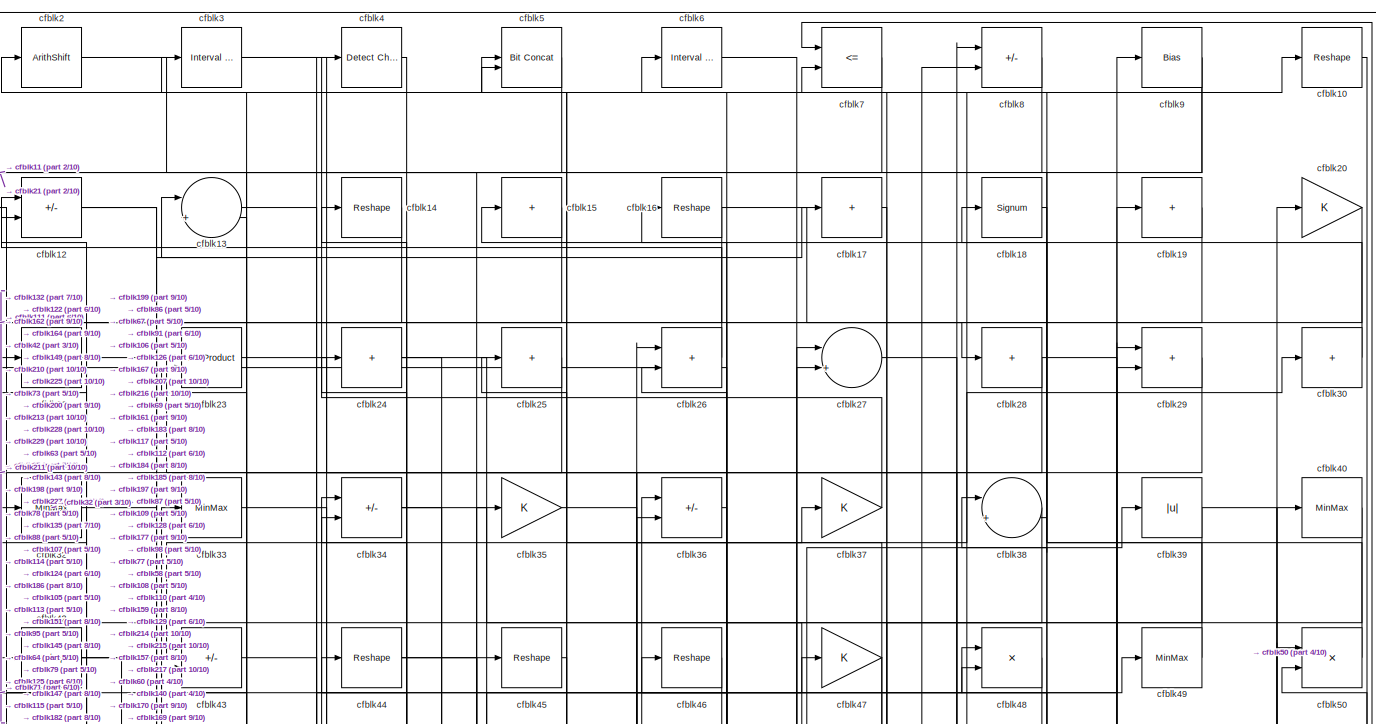
[diagram: root canvas - part 1/10, full width, top band]
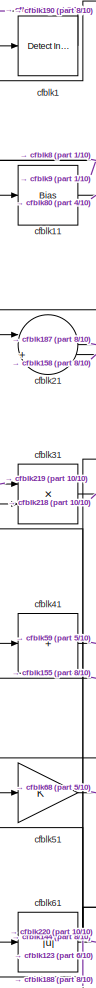
[diagram: root canvas - part 2/10, top left region]
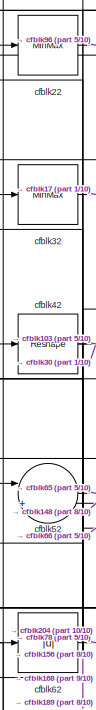
[diagram: root canvas - part 3/10, top left region]
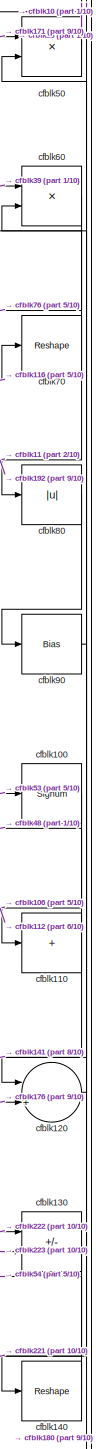
[diagram: root canvas - part 4/10, middle right region]
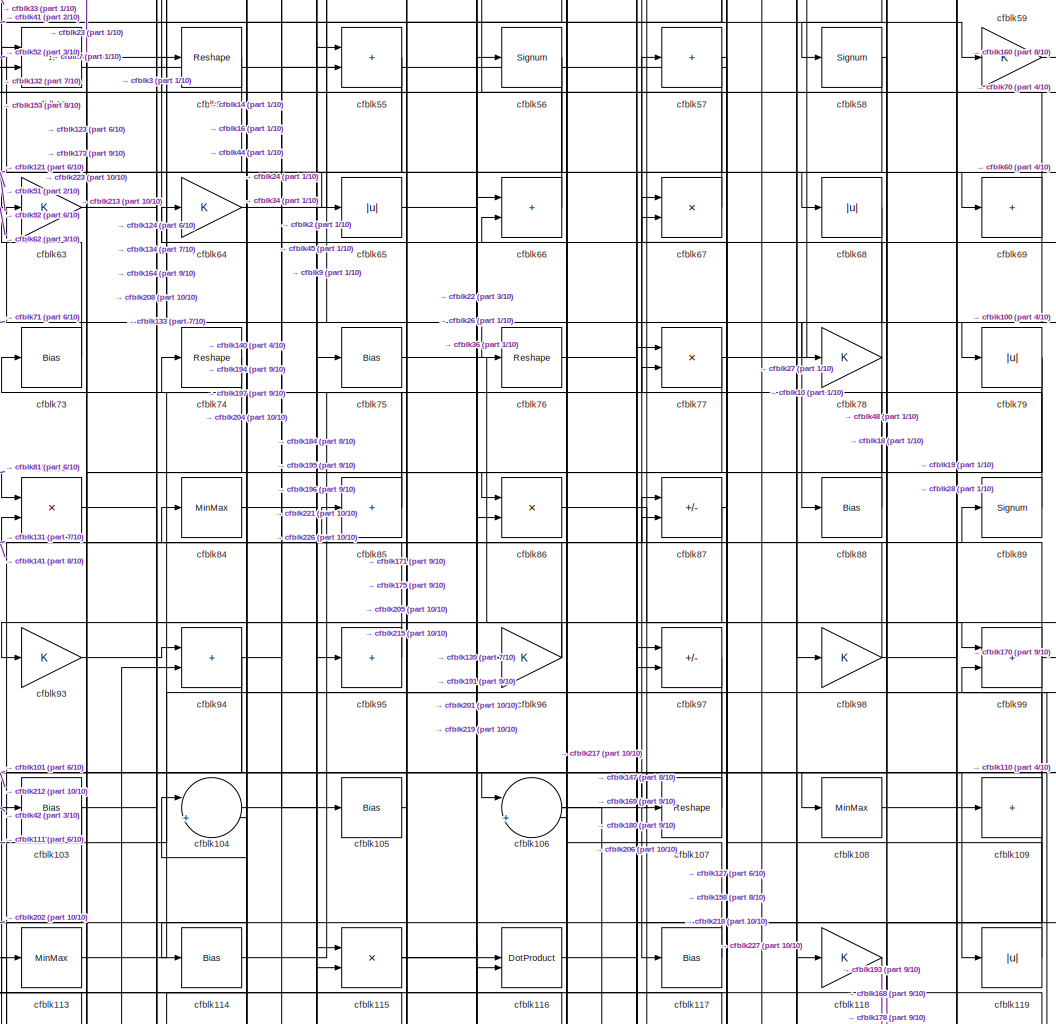
[diagram: root canvas - part 5/10, central region]
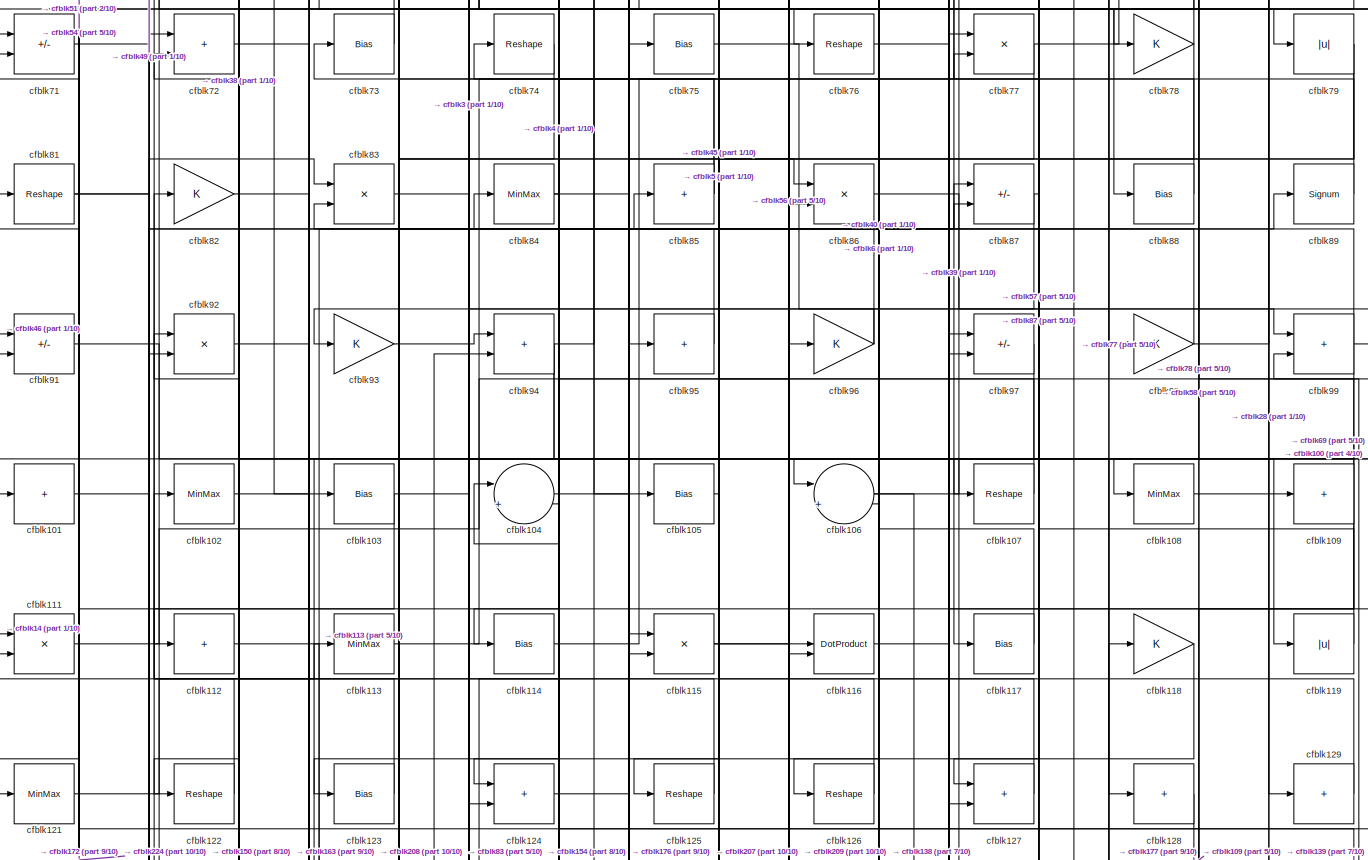
[diagram: root canvas - part 6/10, full width, middle band]
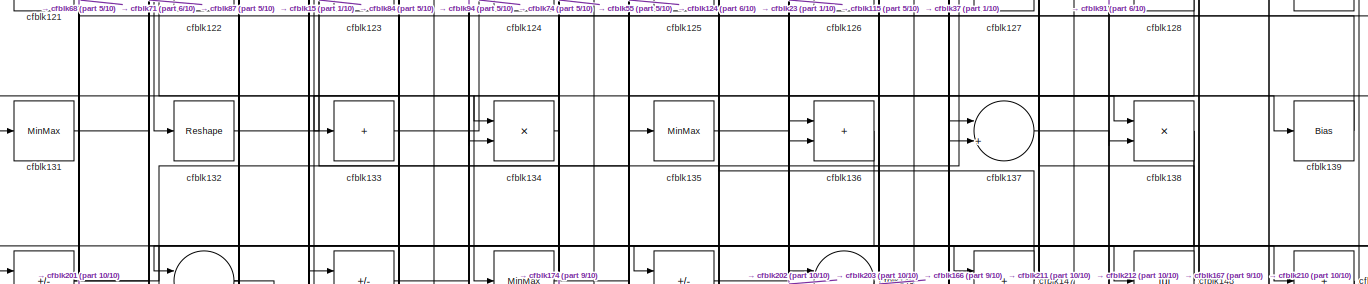
[diagram: root canvas - part 7/10, full width, middle band]
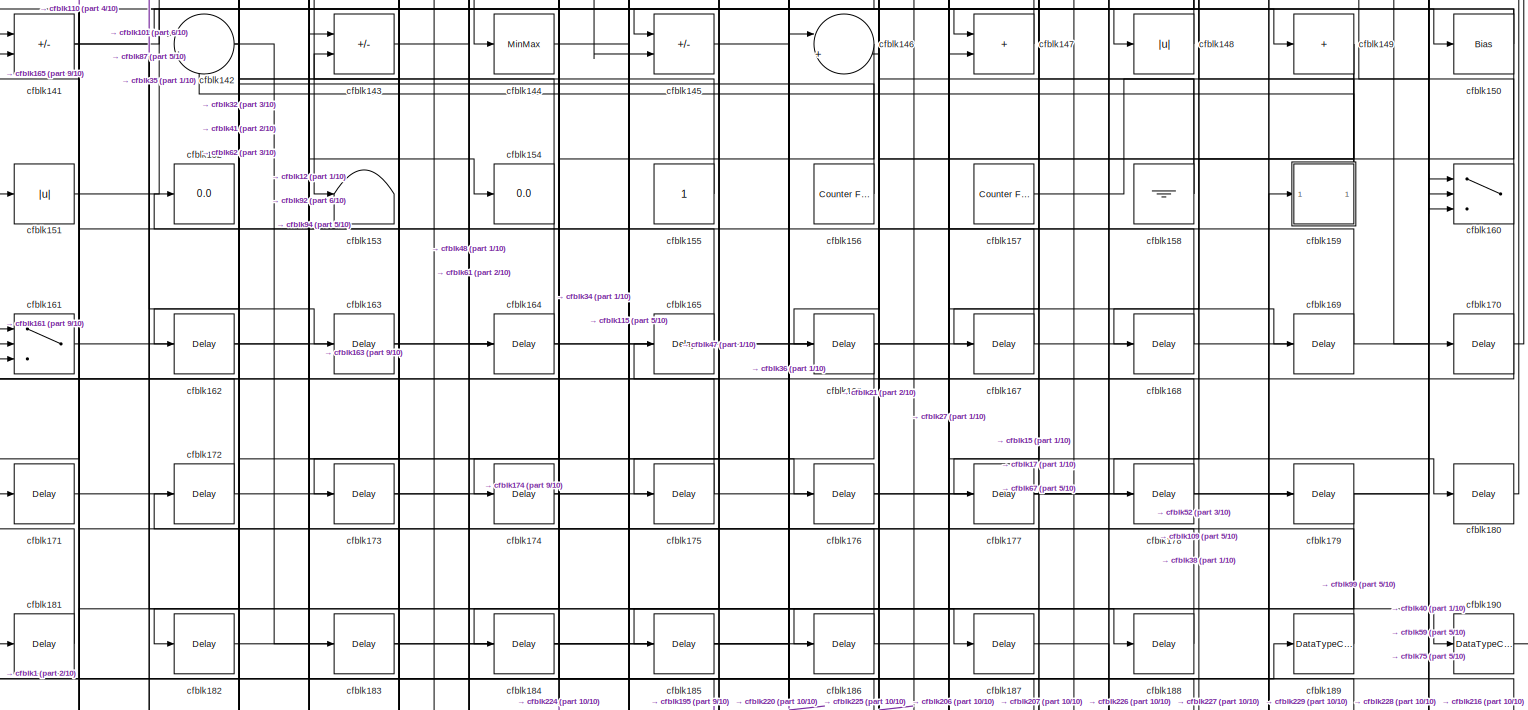
[diagram: root canvas - part 8/10, full width, bottom band]
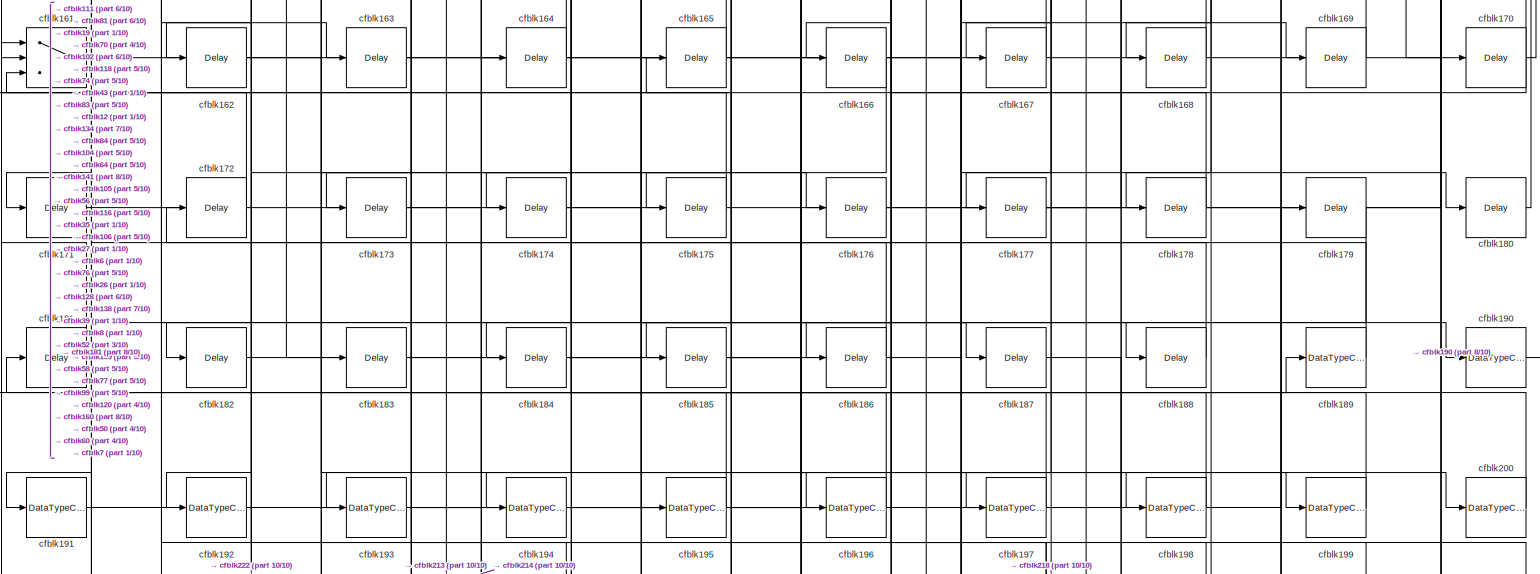
[diagram: root canvas - part 9/10, full width, bottom band]
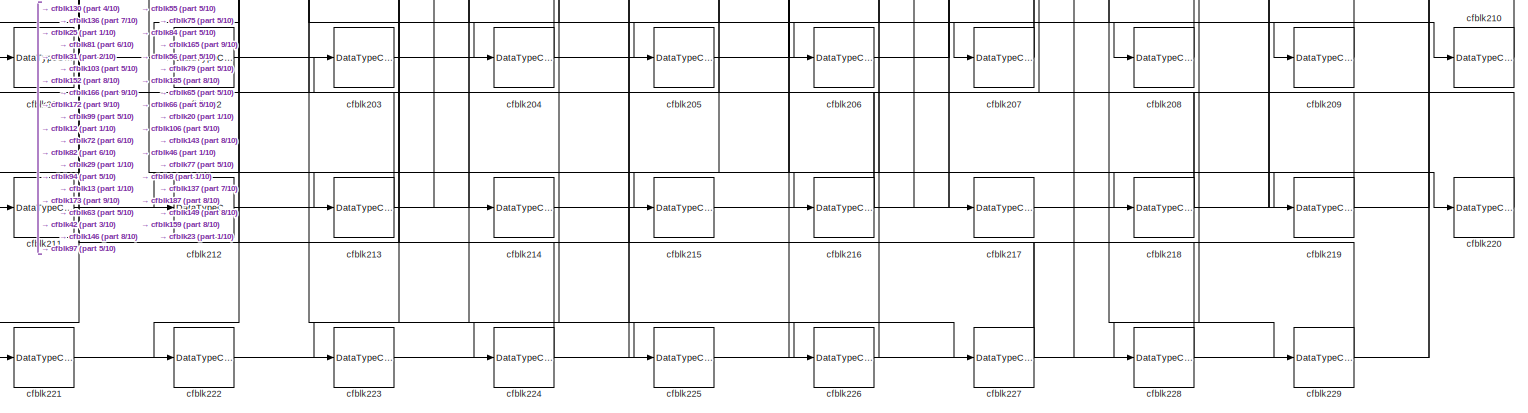
[diagram: root canvas - part 10/10, full width, bottom band]
MODEL slx_e704a06ff0ff
KIND model
CONFIG AbsTol = auto
CONFIG EnableMultiTasking = off
CONFIG FixedStep = auto
CONFIG MaxStep = auto
CONFIG MinStep = auto
CONFIG RelTol = 1e-3
CONFIG SampleTimeConstraint = Unconstrained
CONFIG SolverName = VariableStepAuto
CONFIG StartTime = 0.0
CONFIG StopTime = 10.0
BLOCK [Reference] cfblk1  REF=simulink/Logic and Bit
Operations/Detect
Increase
  LibrarySourceBlock = hdlsllib/Logic and Bit\nOperations/Detect\nIncrease
  SourceBlock = simulink/Logic and Bit\nOperations/Detect\nIncrease
  SourceType = Detect Increase
BLOCK [Reshape] cfblk10
BLOCK [Signum] cfblk100
BLOCK [Sum] cfblk101
  IconShape = rectangular
  Inputs = +
BLOCK [MinMax] cfblk102
BLOCK [Bias] cfblk103
  Bias = 0.0
  SaturateOnIntegerOverflow = off
BLOCK [Sum] cfblk104
  Inputs = |++
BLOCK [Bias] cfblk105
  Bias = 0.0
  SaturateOnIntegerOverflow = off
BLOCK [Sum] cfblk106
  Inputs = |++
BLOCK [Reshape] cfblk107
BLOCK [MinMax] cfblk108
BLOCK [Sum] cfblk109
  IconShape = rectangular
  Inputs = +
BLOCK [Bias] cfblk11
  Bias = 0.0
  SaturateOnIntegerOverflow = off
BLOCK [Sum] cfblk110
  IconShape = rectangular
  Inputs = +
BLOCK [Product] cfblk111
  Inputs = */
  RndMeth = Zero
  SaturateOnIntegerOverflow = on
BLOCK [Sum] cfblk112
  IconShape = rectangular
  Inputs = +
BLOCK [MinMax] cfblk113
BLOCK [Bias] cfblk114
  Bias = 0.0
  SaturateOnIntegerOverflow = off
BLOCK [Product] cfblk115
  Inputs = */
  RndMeth = Zero
  SaturateOnIntegerOverflow = on
BLOCK [DotProduct] cfblk116
  OutDataTypeStr = Inherit: Inherit via internal rule
BLOCK [Bias] cfblk117
  Bias = 0.0
  SaturateOnIntegerOverflow = off
BLOCK [Gain] cfblk118
BLOCK [Abs] cfblk119
  SaturateOnIntegerOverflow = off
BLOCK [Sum] cfblk12
  IconShape = rectangular
  Inputs = +-
BLOCK [Sum] cfblk120
  Inputs = |++
BLOCK [MinMax] cfblk121
BLOCK [Reshape] cfblk122
BLOCK [Bias] cfblk123
  Bias = 0.0
  SaturateOnIntegerOverflow = off
BLOCK [Sum] cfblk124
  IconShape = rectangular
BLOCK [Reshape] cfblk125
BLOCK [Reshape] cfblk126
BLOCK [Sum] cfblk127
  IconShape = rectangular
BLOCK [Sum] cfblk128
  IconShape = rectangular
  Inputs = +
BLOCK [Sum] cfblk129
  IconShape = rectangular
  Inputs = +
BLOCK [Sum] cfblk13
  Inputs = |++
BLOCK [Sum] cfblk130
  IconShape = rectangular
  Inputs = +-
BLOCK [MinMax] cfblk131
BLOCK [Reshape] cfblk132
BLOCK [Sum] cfblk133
  IconShape = rectangular
  Inputs = +
BLOCK [Product] cfblk134
  Inputs = */
  RndMeth = Zero
  SaturateOnIntegerOverflow = on
BLOCK [MinMax] cfblk135
BLOCK [Sum] cfblk136
  IconShape = rectangular
BLOCK [Sum] cfblk137
  Inputs = |++
BLOCK [Product] cfblk138
  Inputs = */
  RndMeth = Zero
  SaturateOnIntegerOverflow = on
BLOCK [Bias] cfblk139
  Bias = 0.0
  SaturateOnIntegerOverflow = off
BLOCK [Reshape] cfblk14
BLOCK [Reshape] cfblk140
BLOCK [Sum] cfblk141
  IconShape = rectangular
  Inputs = +-
BLOCK [Sum] cfblk142
  Inputs = |++
BLOCK [Sum] cfblk143
  IconShape = rectangular
  Inputs = +-
BLOCK [MinMax] cfblk144
BLOCK [Sum] cfblk145
  IconShape = rectangular
  Inputs = +-
BLOCK [Sum] cfblk146
  Inputs = |++
BLOCK [Sum] cfblk147
  IconShape = rectangular
BLOCK [Abs] cfblk148
  SaturateOnIntegerOverflow = off
BLOCK [Sum] cfblk149
  IconShape = rectangular
  Inputs = +
BLOCK [Sum] cfblk15
  IconShape = rectangular
  Inputs = +
BLOCK [Bias] cfblk150
  Bias = 0.0
  SaturateOnIntegerOverflow = off
BLOCK [Abs] cfblk151
  SaturateOnIntegerOverflow = off
BLOCK [Display] cfblk152
  Decimation = 1
BLOCK [Terminator] cfblk153
BLOCK [Display] cfblk154
  Decimation = 1
BLOCK [Constant] cfblk155
  SampleTime = -1
BLOCK [Reference] cfblk156  REF=hdlsllib/Sources/Counter
Free-Running
  SourceBlock = hdlsllib/Sources/Counter\nFree-Running
  SourceType = Counter Free-Running
BLOCK [Reference] cfblk157  REF=hdlsllib/Sources/Counter
Free-Running
  SourceBlock = hdlsllib/Sources/Counter\nFree-Running
  SourceType = Counter Free-Running
BLOCK [Ground] cfblk158
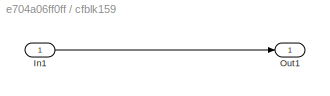
BLOCK [SubSystem] cfblk159
  LibrarySourceBlock = hdlsllib/Ports &\nSubsystems/Subsystem
BLOCK [Inport] cfblk159/In1
BLOCK [Outport] cfblk159/Out1
BLOCK [Reshape] cfblk16
BLOCK [Switch] cfblk160
  InputSameDT = off
  SaturateOnIntegerOverflow = off
BLOCK [Switch] cfblk161
  InputSameDT = off
  SaturateOnIntegerOverflow = off
BLOCK [Delay] cfblk162
  InputPortMap = u0
  SampleTime = 1
BLOCK [Delay] cfblk163
  InputPortMap = u0
  SampleTime = 1
BLOCK [Delay] cfblk164
  InputPortMap = u0
  SampleTime = 1
BLOCK [Delay] cfblk165
  InputPortMap = u0
  SampleTime = 1
BLOCK [Delay] cfblk166
  InputPortMap = u0
  SampleTime = 1
BLOCK [Delay] cfblk167
  InputPortMap = u0
  SampleTime = 1
BLOCK [Delay] cfblk168
  InputPortMap = u0
  SampleTime = 1
BLOCK [Delay] cfblk169
  InputPortMap = u0
  SampleTime = 1
BLOCK [Sum] cfblk17
  IconShape = rectangular
  Inputs = +
BLOCK [Delay] cfblk170
  InputPortMap = u0
  SampleTime = 1
BLOCK [Delay] cfblk171
  InputPortMap = u0
  SampleTime = 1
BLOCK [Delay] cfblk172
  InputPortMap = u0
  SampleTime = 1
BLOCK [Delay] cfblk173
  InputPortMap = u0
  SampleTime = 1
BLOCK [Delay] cfblk174
  InputPortMap = u0
  SampleTime = 1
BLOCK [Delay] cfblk175
  InputPortMap = u0
  SampleTime = 1
BLOCK [Delay] cfblk176
  InputPortMap = u0
  SampleTime = 1
BLOCK [Delay] cfblk177
  InputPortMap = u0
  SampleTime = 1
BLOCK [Delay] cfblk178
  InputPortMap = u0
  SampleTime = 1
BLOCK [Delay] cfblk179
  InputPortMap = u0
  SampleTime = 1
BLOCK [Signum] cfblk18
BLOCK [Delay] cfblk180
  InputPortMap = u0
  SampleTime = 1
BLOCK [Delay] cfblk181
  InputPortMap = u0
  SampleTime = 1
BLOCK [Delay] cfblk182
  InputPortMap = u0
  SampleTime = 1
BLOCK [Delay] cfblk183
  InputPortMap = u0
  SampleTime = 1
BLOCK [Delay] cfblk184
  InputPortMap = u0
  SampleTime = 1
BLOCK [Delay] cfblk185
  InputPortMap = u0
  SampleTime = 1
BLOCK [Delay] cfblk186
  InputPortMap = u0
  SampleTime = 1
BLOCK [Delay] cfblk187
  InputPortMap = u0
  SampleTime = 1
BLOCK [Delay] cfblk188
  InputPortMap = u0
  SampleTime = 1
BLOCK [DataTypeConversion] cfblk189
  OutDataTypeStr = uint8
  RndMeth = Floor
  SaturateOnIntegerOverflow = off
BLOCK [Sum] cfblk19
  IconShape = rectangular
  Inputs = +
BLOCK [DataTypeConversion] cfblk190
  OutDataTypeStr = uint8
  RndMeth = Floor
  SaturateOnIntegerOverflow = off
BLOCK [DataTypeConversion] cfblk191
  OutDataTypeStr = uint8
  RndMeth = Floor
  SaturateOnIntegerOverflow = off
BLOCK [DataTypeConversion] cfblk192
  OutDataTypeStr = uint8
  RndMeth = Floor
  SaturateOnIntegerOverflow = off
BLOCK [DataTypeConversion] cfblk193
  OutDataTypeStr = uint8
  RndMeth = Floor
  SaturateOnIntegerOverflow = off
BLOCK [DataTypeConversion] cfblk194
  OutDataTypeStr = uint8
  RndMeth = Floor
  SaturateOnIntegerOverflow = off
BLOCK [DataTypeConversion] cfblk195
  OutDataTypeStr = uint8
  RndMeth = Floor
  SaturateOnIntegerOverflow = off
BLOCK [DataTypeConversion] cfblk196
  OutDataTypeStr = uint8
  RndMeth = Floor
  SaturateOnIntegerOverflow = off
BLOCK [DataTypeConversion] cfblk197
  OutDataTypeStr = uint8
  RndMeth = Floor
  SaturateOnIntegerOverflow = off
BLOCK [DataTypeConversion] cfblk198
  OutDataTypeStr = uint8
  RndMeth = Floor
  SaturateOnIntegerOverflow = off
BLOCK [DataTypeConversion] cfblk199
  OutDataTypeStr = uint8
  RndMeth = Floor
  SaturateOnIntegerOverflow = off
BLOCK [ArithShift] cfblk2
  BitShiftNumber = 8
  InputPortMap = u0
BLOCK [Gain] cfblk20
BLOCK [DataTypeConversion] cfblk200
  OutDataTypeStr = uint8
  RndMeth = Floor
  SaturateOnIntegerOverflow = off
BLOCK [DataTypeConversion] cfblk201
  OutDataTypeStr = uint8
  RndMeth = Floor
  SaturateOnIntegerOverflow = off
BLOCK [DataTypeConversion] cfblk202
  OutDataTypeStr = uint8
  RndMeth = Floor
  SaturateOnIntegerOverflow = off
BLOCK [DataTypeConversion] cfblk203
  OutDataTypeStr = uint8
  RndMeth = Floor
  SaturateOnIntegerOverflow = off
BLOCK [DataTypeConversion] cfblk204
  OutDataTypeStr = uint8
  RndMeth = Floor
  SaturateOnIntegerOverflow = off
BLOCK [DataTypeConversion] cfblk205
  OutDataTypeStr = uint8
  RndMeth = Floor
  SaturateOnIntegerOverflow = off
BLOCK [DataTypeConversion] cfblk206
  OutDataTypeStr = uint8
  RndMeth = Floor
  SaturateOnIntegerOverflow = off
BLOCK [DataTypeConversion] cfblk207
  RndMeth = Floor
  SaturateOnIntegerOverflow = off
BLOCK [DataTypeConversion] cfblk208
  OutDataTypeStr = uint8
  RndMeth = Floor
  SaturateOnIntegerOverflow = off
BLOCK [DataTypeConversion] cfblk209
  OutDataTypeStr = uint8
  RndMeth = Floor
  SaturateOnIntegerOverflow = off
BLOCK [Sum] cfblk21
  Inputs = |++
BLOCK [DataTypeConversion] cfblk210
  OutDataTypeStr = uint8
  RndMeth = Floor
  SaturateOnIntegerOverflow = off
BLOCK [DataTypeConversion] cfblk211
  OutDataTypeStr = uint8
  RndMeth = Floor
  SaturateOnIntegerOverflow = off
BLOCK [DataTypeConversion] cfblk212
  OutDataTypeStr = uint8
  RndMeth = Floor
  SaturateOnIntegerOverflow = off
BLOCK [DataTypeConversion] cfblk213
  RndMeth = Floor
  SaturateOnIntegerOverflow = off
BLOCK [DataTypeConversion] cfblk214
  OutDataTypeStr = uint8
  RndMeth = Floor
  SaturateOnIntegerOverflow = off
BLOCK [DataTypeConversion] cfblk215
  OutDataTypeStr = uint8
  RndMeth = Floor
  SaturateOnIntegerOverflow = off
BLOCK [DataTypeConversion] cfblk216
  RndMeth = Floor
  SaturateOnIntegerOverflow = off
BLOCK [DataTypeConversion] cfblk217
  OutDataTypeStr = uint8
  RndMeth = Floor
  SaturateOnIntegerOverflow = off
BLOCK [DataTypeConversion] cfblk218
  RndMeth = Floor
  SaturateOnIntegerOverflow = off
BLOCK [DataTypeConversion] cfblk219
  OutDataTypeStr = uint8
  RndMeth = Floor
  SaturateOnIntegerOverflow = off
BLOCK [MinMax] cfblk22
BLOCK [DataTypeConversion] cfblk220
  OutDataTypeStr = uint8
  RndMeth = Floor
  SaturateOnIntegerOverflow = off
BLOCK [DataTypeConversion] cfblk221
  OutDataTypeStr = uint8
  RndMeth = Floor
  SaturateOnIntegerOverflow = off
BLOCK [DataTypeConversion] cfblk222
  OutDataTypeStr = uint8
  RndMeth = Floor
  SaturateOnIntegerOverflow = off
BLOCK [DataTypeConversion] cfblk223
  OutDataTypeStr = uint8
  RndMeth = Floor
  SaturateOnIntegerOverflow = off
BLOCK [DataTypeConversion] cfblk224
  OutDataTypeStr = uint8
  RndMeth = Floor
  SaturateOnIntegerOverflow = off
BLOCK [DataTypeConversion] cfblk225
  OutDataTypeStr = uint8
  RndMeth = Floor
  SaturateOnIntegerOverflow = off
BLOCK [DataTypeConversion] cfblk226
  OutDataTypeStr = uint8
  RndMeth = Floor
  SaturateOnIntegerOverflow = off
BLOCK [DataTypeConversion] cfblk227
  RndMeth = Floor
  SaturateOnIntegerOverflow = off
BLOCK [DataTypeConversion] cfblk228
  OutDataTypeStr = uint8
  RndMeth = Floor
  SaturateOnIntegerOverflow = off
BLOCK [DataTypeConversion] cfblk229
  OutDataTypeStr = uint8
  RndMeth = Floor
  SaturateOnIntegerOverflow = off
BLOCK [DotProduct] cfblk23
  OutDataTypeStr = Inherit: Inherit via internal rule
BLOCK [Sum] cfblk24
  IconShape = rectangular
  Inputs = +
BLOCK [Sum] cfblk25
  IconShape = rectangular
  Inputs = +
BLOCK [Sum] cfblk26
  IconShape = rectangular
BLOCK [Sum] cfblk27
  Inputs = |++
BLOCK [Sum] cfblk28
  IconShape = rectangular
  Inputs = +
BLOCK [Sum] cfblk29
  IconShape = rectangular
BLOCK [Reference] cfblk3  REF=hdlsllib/Logic and Bit
Operations/Interval Test
  SourceBlock = hdlsllib/Logic and Bit\nOperations/Interval Test
  SourceType = Interval Test
BLOCK [Sum] cfblk30
  IconShape = rectangular
  Inputs = +
BLOCK [Product] cfblk31
  Inputs = */
  RndMeth = Zero
  SaturateOnIntegerOverflow = on
BLOCK [MinMax] cfblk32
BLOCK [MinMax] cfblk33
BLOCK [Sum] cfblk34
  IconShape = rectangular
  Inputs = +-
BLOCK [Gain] cfblk35
BLOCK [Sum] cfblk36
  IconShape = rectangular
  Inputs = +-
BLOCK [Gain] cfblk37
BLOCK [Sum] cfblk38
  Inputs = |++
BLOCK [Abs] cfblk39
  SaturateOnIntegerOverflow = off
BLOCK [Reference] cfblk4  REF=simulink/Logic and Bit
Operations/Detect
Change
  LibrarySourceBlock = hdlsllib/Logic and Bit\nOperations/Detect\nChange
  SourceBlock = simulink/Logic and Bit\nOperations/Detect\nChange
  SourceType = Detect Change
BLOCK [MinMax] cfblk40
BLOCK [Sum] cfblk41
  IconShape = rectangular
  Inputs = +
BLOCK [Reshape] cfblk42
BLOCK [Sum] cfblk43
  IconShape = rectangular
  Inputs = +-
BLOCK [Reshape] cfblk44
BLOCK [Reshape] cfblk45
BLOCK [Reshape] cfblk46
BLOCK [Gain] cfblk47
BLOCK [Product] cfblk48
  Inputs = */
  RndMeth = Zero
  SaturateOnIntegerOverflow = on
BLOCK [MinMax] cfblk49
BLOCK [Reference] cfblk5  REF=hdlsllib/Logic and Bit
Operations/Bit Concat
  SourceBlock = hdlsllib/Logic and Bit\nOperations/Bit Concat
  SourceType = Bit Concat
BLOCK [Product] cfblk50
  Inputs = */
  RndMeth = Zero
  SaturateOnIntegerOverflow = on
BLOCK [Gain] cfblk51
BLOCK [Sum] cfblk52
  Inputs = |++
BLOCK [Product] cfblk53
  Inputs = */
  RndMeth = Zero
  SaturateOnIntegerOverflow = on
BLOCK [Reshape] cfblk54
BLOCK [Sum] cfblk55
  IconShape = rectangular
BLOCK [Signum] cfblk56
BLOCK [Sum] cfblk57
  IconShape = rectangular
  Inputs = +
BLOCK [Signum] cfblk58
BLOCK [Gain] cfblk59
BLOCK [Reference] cfblk6  REF=hdlsllib/Logic and Bit
Operations/Interval Test
  SourceBlock = hdlsllib/Logic and Bit\nOperations/Interval Test
  SourceType = Interval Test
BLOCK [Product] cfblk60
  Inputs = */
  RndMeth = Zero
  SaturateOnIntegerOverflow = on
BLOCK [Abs] cfblk61
  SaturateOnIntegerOverflow = off
BLOCK [Abs] cfblk62
  SaturateOnIntegerOverflow = off
BLOCK [Gain] cfblk63
BLOCK [Gain] cfblk64
BLOCK [Abs] cfblk65
  SaturateOnIntegerOverflow = off
BLOCK [Sum] cfblk66
  IconShape = rectangular
BLOCK [Product] cfblk67
  Inputs = */
  RndMeth = Zero
  SaturateOnIntegerOverflow = on
BLOCK [Abs] cfblk68
  SaturateOnIntegerOverflow = off
BLOCK [Sum] cfblk69
  IconShape = rectangular
  Inputs = +
BLOCK [RelationalOperator] cfblk7
  InputSameDT = off
  Operator = <=
  OutDataTypeStr = boolean
BLOCK [Reshape] cfblk70
BLOCK [Sum] cfblk71
  IconShape = rectangular
  Inputs = +-
BLOCK [Sum] cfblk72
  IconShape = rectangular
BLOCK [Bias] cfblk73
  Bias = 0.0
  SaturateOnIntegerOverflow = off
BLOCK [Reshape] cfblk74
BLOCK [Bias] cfblk75
  Bias = 0.0
  SaturateOnIntegerOverflow = off
BLOCK [Reshape] cfblk76
BLOCK [Product] cfblk77
  Inputs = */
  RndMeth = Zero
  SaturateOnIntegerOverflow = on
BLOCK [Gain] cfblk78
BLOCK [Abs] cfblk79
  SaturateOnIntegerOverflow = off
BLOCK [Sum] cfblk8
  IconShape = rectangular
  Inputs = +-
BLOCK [Abs] cfblk80
  SaturateOnIntegerOverflow = off
BLOCK [Reshape] cfblk81
BLOCK [Gain] cfblk82
BLOCK [Product] cfblk83
  Inputs = */
  RndMeth = Zero
  SaturateOnIntegerOverflow = on
BLOCK [MinMax] cfblk84
BLOCK [Sum] cfblk85
  IconShape = rectangular
  Inputs = +
BLOCK [Product] cfblk86
  Inputs = */
  RndMeth = Zero
  SaturateOnIntegerOverflow = on
BLOCK [Sum] cfblk87
  IconShape = rectangular
  Inputs = +-
BLOCK [Bias] cfblk88
  Bias = 0.0
  SaturateOnIntegerOverflow = off
BLOCK [Signum] cfblk89
BLOCK [Bias] cfblk9
  Bias = 0.0
  SaturateOnIntegerOverflow = off
BLOCK [Bias] cfblk90
  Bias = 0.0
  SaturateOnIntegerOverflow = off
BLOCK [Sum] cfblk91
  IconShape = rectangular
  Inputs = +-
BLOCK [Product] cfblk92
  Inputs = */
  RndMeth = Zero
  SaturateOnIntegerOverflow = on
BLOCK [Gain] cfblk93
BLOCK [Sum] cfblk94
  IconShape = rectangular
BLOCK [Sum] cfblk95
  IconShape = rectangular
  Inputs = +
BLOCK [Gain] cfblk96
BLOCK [Sum] cfblk97
  IconShape = rectangular
  Inputs = +-
BLOCK [Gain] cfblk98
BLOCK [Sum] cfblk99
  IconShape = rectangular
LINE cfblk100:1 -> cfblk112:1
LINE cfblk101:1 -> cfblk150:1
LINE cfblk102:1 -> cfblk176:1
NET cfblk103:1 -> cfblk202:1, cfblk89:1
LINE cfblk104:1 -> cfblk195:1
LINE cfblk105:1 -> cfblk175:1
NET cfblk106:1 -> cfblk110:1, cfblk217:1
LINE cfblk107:1 -> cfblk24:1
LINE cfblk108:1 -> cfblk119:1
NET cfblk109:1 -> cfblk101:1, cfblk147:2, cfblk178:1, cfblk85:1
LINE cfblk10:1 -> cfblk140:1
NET cfblk110:1 -> cfblk141:1, cfblk48:2
LINE cfblk111:1 -> cfblk56:1
LINE cfblk112:1 -> cfblk39:1
LINE cfblk113:1 -> cfblk45:1
LINE cfblk114:1 -> cfblk57:1
NET cfblk115:1 -> cfblk139:1, cfblk26:1
LINE cfblk116:1 -> cfblk70:1
LINE cfblk117:1 -> cfblk66:2
LINE cfblk118:1 -> cfblk193:1
LINE cfblk119:1 -> cfblk67:2
LINE cfblk11:1 -> cfblk80:1
LINE cfblk120:1 -> cfblk50:2
LINE cfblk121:1 -> cfblk113:1
LINE cfblk122:1 -> cfblk82:1
LINE cfblk123:1 -> cfblk51:1
LINE cfblk124:1 -> cfblk138:1
LINE cfblk125:1 -> cfblk92:1
LINE cfblk126:1 -> cfblk5:1
LINE cfblk127:1 -> cfblk102:1
LINE cfblk128:1 -> cfblk177:1
LINE cfblk129:1 -> cfblk6:1
NET cfblk12:1 -> cfblk149:1, cfblk225:1
LINE cfblk130:1 -> cfblk221:1
LINE cfblk131:1 -> cfblk87:1
LINE cfblk132:1 -> cfblk84:1
LINE cfblk133:1 -> cfblk74:1
LINE cfblk134:1 -> cfblk174:1
LINE cfblk135:1 -> cfblk37:1
LINE cfblk136:1 -> cfblk201:1
LINE cfblk137:1 -> cfblk210:1
NET cfblk138:1 -> cfblk166:1, cfblk167:1
LINE cfblk139:1 -> cfblk71:1
LINE cfblk13:1 -> cfblk227:1
LINE cfblk140:1 -> cfblk54:1
NET cfblk141:1 -> cfblk148:1, cfblk87:2
NET cfblk142:1 -> cfblk182:1, cfblk183:1
LINE cfblk143:1 -> cfblk48:1
LINE cfblk144:1 -> cfblk188:1
LINE cfblk145:1 -> cfblk47:1
LINE cfblk146:1 -> cfblk224:1
LINE cfblk147:1 -> cfblk15:1
LINE cfblk148:1 -> cfblk52:2
NET cfblk149:1 -> cfblk206:1, cfblk228:1
LINE cfblk14:1 -> cfblk111:1
NET cfblk150:1 -> cfblk142:1, cfblk145:1, cfblk186:1
LINE cfblk151:1 -> cfblk35:1
LINE cfblk155:1 -> cfblk41:1
LINE cfblk156:1 -> cfblk32:1
LINE cfblk157:1 -> cfblk40:1
NET cfblk158:1 -> cfblk21:2, cfblk67:1
LINE cfblk159/In1:1 -> cfblk159/Out1:1
NET cfblk159:1 -> cfblk142:2, cfblk38:1
LINE cfblk15:1 -> cfblk132:1
NET cfblk160:1 -> cfblk151:1, cfblk99:2
LINE cfblk161:1 -> cfblk27:1
LINE cfblk162:1 -> cfblk200:1
LINE cfblk163:1 -> cfblk160:1
LINE cfblk164:1 -> cfblk12:2
LINE cfblk165:1 -> cfblk141:2
LINE cfblk166:1 -> cfblk222:1
LINE cfblk167:1 -> cfblk26:2
LINE cfblk168:1 -> cfblk52:1
LINE cfblk169:1 -> cfblk77:1
NET cfblk16:1 -> cfblk114:1, cfblk28:1
LINE cfblk170:1 -> cfblk7:1
LINE cfblk171:1 -> cfblk50:1
LINE cfblk172:1 -> cfblk111:2
LINE cfblk173:1 -> cfblk214:1
LINE cfblk174:1 -> cfblk190:1
LINE cfblk175:1 -> cfblk161:2
LINE cfblk176:1 -> cfblk120:2
LINE cfblk177:1 -> cfblk8:1
LINE cfblk178:1 -> cfblk106:2
LINE cfblk179:1 -> cfblk191:1
LINE cfblk17:1 -> cfblk147:1
LINE cfblk180:1 -> cfblk60:2
LINE cfblk181:1 -> cfblk161:1
LINE cfblk182:1 -> cfblk36:2
LINE cfblk183:1 -> cfblk27:2
LINE cfblk184:1 -> cfblk115:2
LINE cfblk185:1 -> cfblk220:1
LINE cfblk186:1 -> cfblk34:2
LINE cfblk187:1 -> cfblk229:1
LINE cfblk188:1 -> cfblk61:1
LINE cfblk189:1 -> cfblk62:1
LINE cfblk18:1 -> cfblk108:1
LINE cfblk190:1 -> cfblk1:1
LINE cfblk191:1 -> cfblk116:2
LINE cfblk192:1 -> cfblk179:1
LINE cfblk193:1 -> cfblk116:1
LINE cfblk194:1 -> cfblk118:1
LINE cfblk195:1 -> cfblk181:1
LINE cfblk196:1 -> cfblk104:1
LINE cfblk197:1 -> cfblk104:2
LINE cfblk198:1 -> cfblk161:3
LINE cfblk199:1 -> cfblk43:1
LINE cfblk19:1 -> cfblk162:1
LINE cfblk1:1 -> cfblk189:1
LINE cfblk200:1 -> cfblk43:2
LINE cfblk201:1 -> cfblk66:1
LINE cfblk202:1 -> cfblk136:1
LINE cfblk203:1 -> cfblk136:2
LINE cfblk204:1 -> cfblk42:1
LINE cfblk205:1 -> cfblk97:1
LINE cfblk206:1 -> cfblk97:2
NET cfblk207:1 -> cfblk143:2, cfblk46:1
LINE cfblk208:1 -> cfblk72:1
LINE cfblk209:1 -> cfblk72:2
LINE cfblk20:1 -> cfblk216:1
LINE cfblk210:1 -> cfblk23:1
LINE cfblk211:1 -> cfblk137:1
LINE cfblk212:1 -> cfblk137:2
NET cfblk213:1 -> cfblk172:1, cfblk94:2
LINE cfblk214:1 -> cfblk29:1
LINE cfblk215:1 -> cfblk29:2
NET cfblk216:1 -> cfblk143:1, cfblk159:1, cfblk203:1
LINE cfblk217:1 -> cfblk20:1
NET cfblk218:1 -> cfblk165:1, cfblk77:2
LINE cfblk219:1 -> cfblk31:1
LINE cfblk21:1 -> cfblk187:1
LINE cfblk220:1 -> cfblk31:2
LINE cfblk221:1 -> cfblk75:1
LINE cfblk222:1 -> cfblk130:1
LINE cfblk223:1 -> cfblk130:2
LINE cfblk224:1 -> cfblk81:1
LINE cfblk225:1 -> cfblk146:1
LINE cfblk226:1 -> cfblk146:2
NET cfblk227:1 -> cfblk152:1, cfblk55:1, cfblk8:2
LINE cfblk228:1 -> cfblk13:1
LINE cfblk229:1 -> cfblk13:2
LINE cfblk22:1 -> cfblk96:1
LINE cfblk23:1 -> cfblk135:1
NET cfblk24:1 -> cfblk105:1, cfblk117:1
LINE cfblk25:1 -> cfblk211:1
LINE cfblk26:1 -> cfblk12:1
LINE cfblk27:1 -> cfblk98:1
NET cfblk28:1 -> cfblk129:1, cfblk86:2
LINE cfblk29:1 -> cfblk213:1
LINE cfblk2:1 -> cfblk95:1
LINE cfblk30:1 -> cfblk5:2
LINE cfblk31:1 -> cfblk218:1
LINE cfblk32:1 -> cfblk17:1
LINE cfblk33:1 -> cfblk88:1
NET cfblk34:1 -> cfblk145:2, cfblk79:1
LINE cfblk35:1 -> cfblk199:1
LINE cfblk36:1 -> cfblk106:1
LINE cfblk37:1 -> cfblk4:1
LINE cfblk38:1 -> cfblk122:1
NET cfblk39:1 -> cfblk197:1, cfblk60:1
NET cfblk3:1 -> cfblk109:1, cfblk128:1
LINE cfblk40:1 -> cfblk126:1
LINE cfblk41:1 -> cfblk59:1
NET cfblk42:1 -> cfblk103:1, cfblk30:1
LINE cfblk43:1 -> cfblk198:1
NET cfblk44:1 -> cfblk115:1, cfblk86:1
LINE cfblk45:1 -> cfblk125:1
LINE cfblk46:1 -> cfblk91:1
NET cfblk47:1 -> cfblk184:1, cfblk185:1, cfblk25:1
LINE cfblk48:1 -> cfblk58:1
LINE cfblk49:1 -> cfblk2:1
LINE cfblk4:1 -> cfblk124:1
LINE cfblk50:1 -> cfblk18:1
LINE cfblk51:1 -> cfblk68:1
LINE cfblk52:1 -> cfblk65:1
LINE cfblk53:1 -> cfblk100:1
LINE cfblk54:1 -> cfblk121:1
NET cfblk55:1 -> cfblk133:1, cfblk134:1
NET cfblk56:1 -> cfblk171:1, cfblk215:1
NET cfblk57:1 -> cfblk107:1, cfblk127:2
NET cfblk58:1 -> cfblk168:1, cfblk92:2
LINE cfblk59:1 -> cfblk160:2
LINE cfblk5:1 -> cfblk91:2
LINE cfblk60:1 -> cfblk76:1
LINE cfblk61:1 -> cfblk144:1
LINE cfblk62:1 -> cfblk78:1
NET cfblk63:1 -> cfblk208:1, cfblk69:1
NET cfblk64:1 -> cfblk196:1, cfblk9:1
LINE cfblk65:1 -> cfblk219:1
LINE cfblk66:1 -> cfblk22:1
LINE cfblk67:1 -> cfblk36:1
LINE cfblk68:1 -> cfblk131:1
NET cfblk69:1 -> cfblk16:1, cfblk71:2
LINE cfblk6:1 -> cfblk169:1
NET cfblk70:1 -> cfblk192:1, cfblk53:2
LINE cfblk71:1 -> cfblk49:1
LINE cfblk72:1 -> cfblk207:1
LINE cfblk73:1 -> cfblk33:1
LINE cfblk74:1 -> cfblk173:1
LINE cfblk75:1 -> cfblk160:3
LINE cfblk76:1 -> cfblk180:1
NET cfblk77:1 -> cfblk10:1, cfblk123:1
NET cfblk78:1 -> cfblk127:1, cfblk34:1
NET cfblk79:1 -> cfblk205:1, cfblk223:1
LINE cfblk7:1 -> cfblk63:1
LINE cfblk80:1 -> cfblk90:1
NET cfblk81:1 -> cfblk163:1, cfblk83:1
LINE cfblk82:1 -> cfblk209:1
LINE cfblk83:1 -> cfblk164:1
NET cfblk84:1 -> cfblk194:1, cfblk226:1
NET cfblk85:1 -> cfblk23:2, cfblk64:1
LINE cfblk86:1 -> cfblk99:1
NET cfblk87:1 -> cfblk124:2, cfblk7:2
LINE cfblk88:1 -> cfblk14:1
LINE cfblk89:1 -> cfblk53:1
LINE cfblk8:1 -> cfblk11:1
LINE cfblk90:1 -> cfblk120:1
LINE cfblk91:1 -> cfblk138:2
LINE cfblk92:1 -> cfblk154:1
LINE cfblk93:1 -> cfblk94:1
NET cfblk94:1 -> cfblk134:2, cfblk153:1, cfblk55:2
LINE cfblk95:1 -> cfblk3:1
NET cfblk96:1 -> cfblk83:2, cfblk93:1
LINE cfblk97:1 -> cfblk204:1
NET cfblk98:1 -> cfblk19:1, cfblk44:1
NET cfblk99:1 -> cfblk170:1, cfblk212:1, cfblk73:1
NET cfblk9:1 -> cfblk21:1, cfblk38:2
note: NET lines group one-source signal fan-out (src -> all destinations, sorted); 1:1 wires keep LINE
